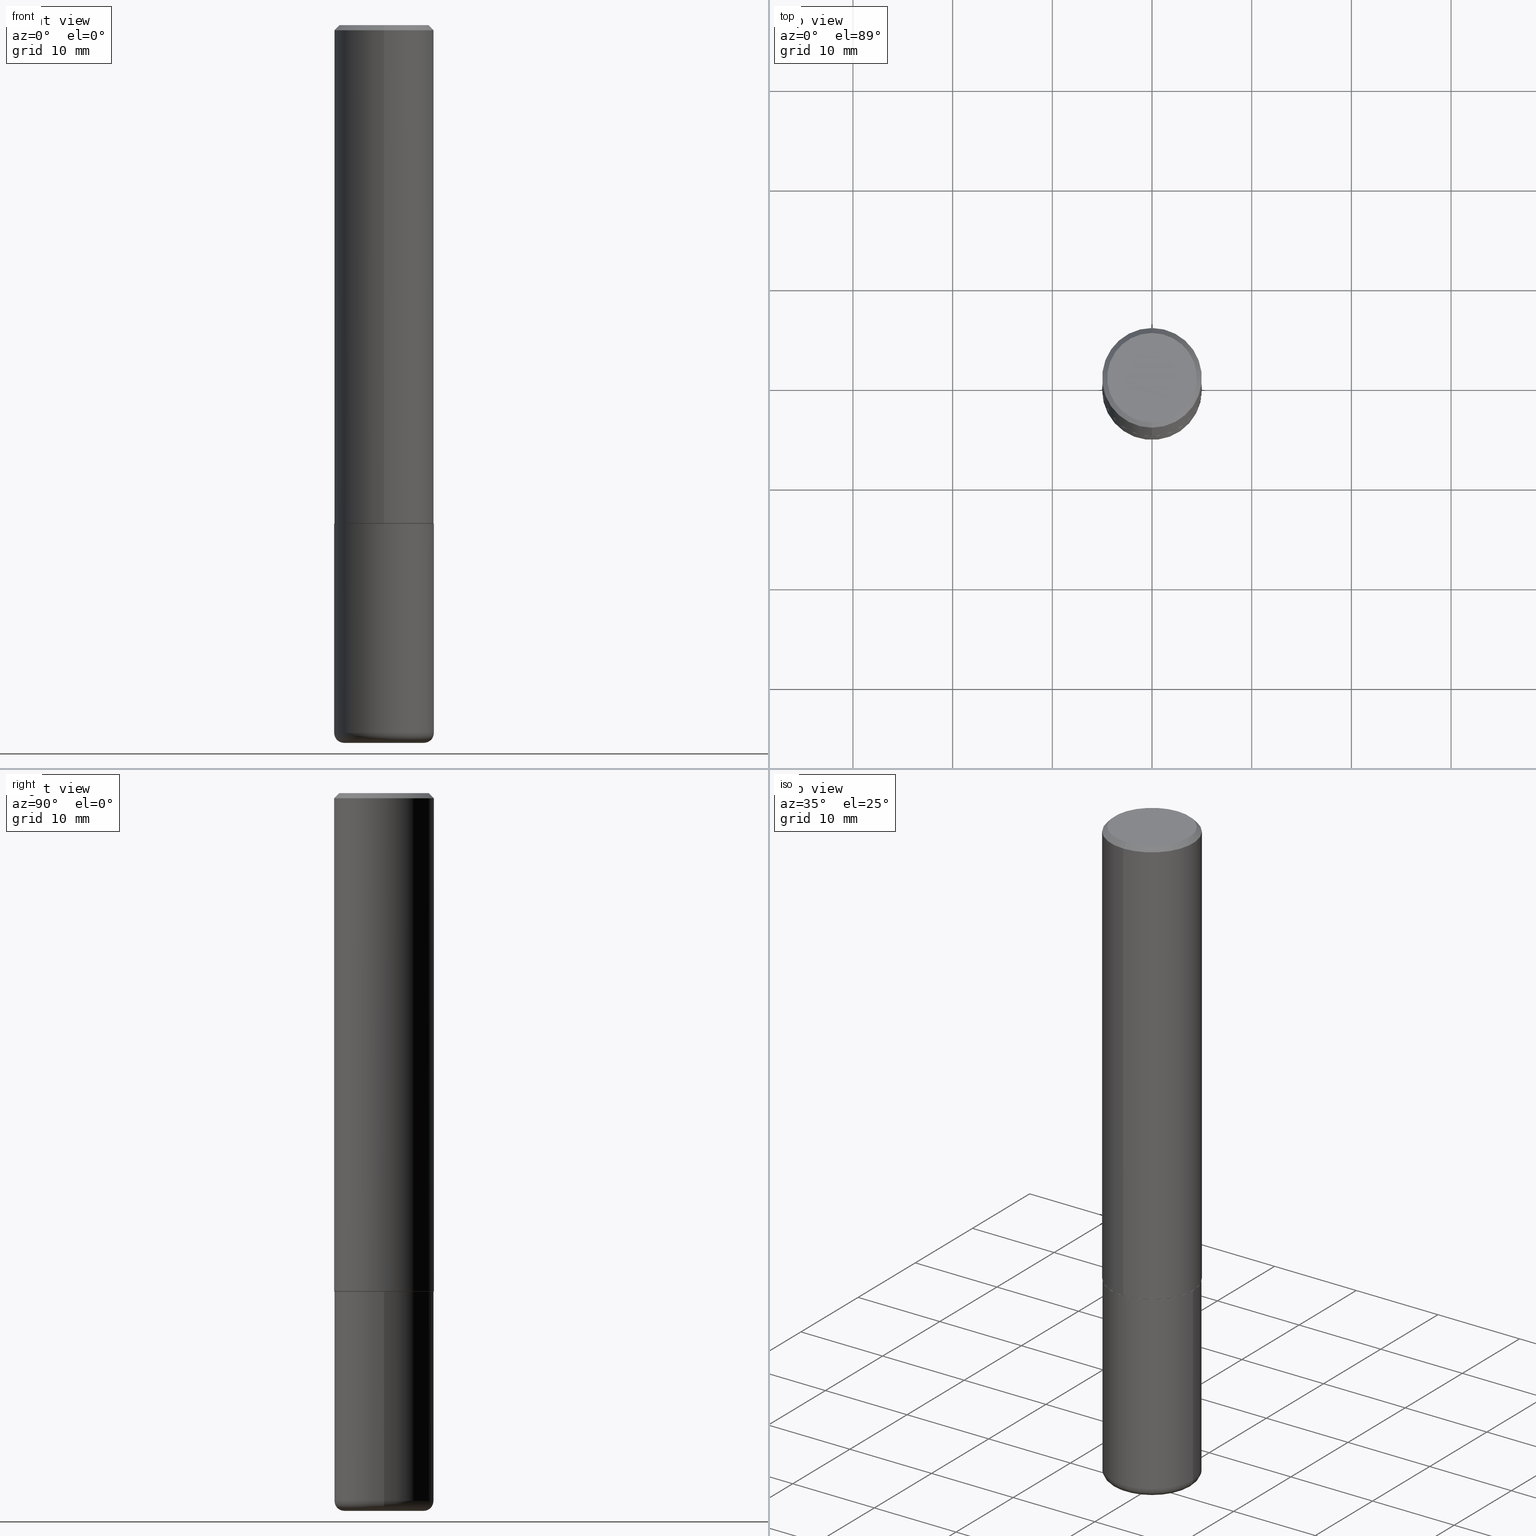
[diagram: canonical four-view strip — front | top / right | iso, engineering-drawing reading convention]
A machine part, canonical four-view strip (front | top / right | iso — engineering-drawing reading convention). The complete STEP part file that produces these views, byte-faithful:
ISO-10303-21;
HEADER;
FILE_DESCRIPTION (( 'STEP AP203' ),
    '1' );
FILE_NAME ('46457.STEP',
    '2024-03-04T21:27:07',
    ( '' ),
    ( '' ),
    'SwSTEP 2.0',
    'SolidWorks 2023',
    '' );
FILE_SCHEMA (( 'CONFIG_CONTROL_DESIGN' ));
ENDSEC;

DATA;
#1 = CIRCLE ( 'NONE', #143, 0.1968500000000000250 ) ;
#2 = CARTESIAN_POINT ( 'NONE',  ( -0.1968500000000000250, 1.398703375343757393E-15, -9.682923725166783677E-30 ) ) ;
#3 = CARTESIAN_POINT ( 'NONE',  ( 1.374596203102542003E-15, 0.1968499999999999417, -0.02000000000000072900 ) ) ;
#4 = ADVANCED_FACE ( 'NONE', ( #323 ), #302, .T. ) ;
#5 = CARTESIAN_POINT ( 'NONE',  ( 0.1574500000000000066, -1.099642047668648249E-14, -2.834600000000000009 ) ) ;
#6 = LINE ( 'NONE', #133, #128 ) ;
#7 = DIRECTION ( 'NONE',  ( -2.445468806185136597E-29, 3.491481338843145583E-15, 1.000000000000000000 ) ) ;
#8 = CONICAL_SURFACE ( 'NONE', #167, 0.1968500000000000250, 0.7853981633974469467 ) ;
#9 = FACE_OUTER_BOUND ( 'NONE', #73, .T. ) ;
#10 = EDGE_CURVE ( 'NONE', #413, #412, #360, .T. ) ;
#11 = DIRECTION ( 'NONE',  ( -2.445768211810956331E-29, 3.491052572945861944E-15, 1.000000000000000000 ) ) ;
#12 = CARTESIAN_POINT ( 'NONE',  ( 6.931925878012387517E-29, -9.896953003084780885E-15, -2.834600000000000009 ) ) ;
#13 = FACE_OUTER_BOUND ( 'NONE', #399, .T. ) ;
#14 = VERTEX_POINT ( 'NONE', #326 ) ;
#15 = EDGE_CURVE ( 'NONE', #412, #176, #71, .T. ) ;
#16 =( CONVERSION_BASED_UNIT ( 'INCH', #246 ) LENGTH_UNIT ( ) NAMED_UNIT ( #328 ) );
#17 = DIRECTION ( 'NONE',  ( -2.445768211810956331E-29, 3.491052572945861944E-15, 1.000000000000000000 ) ) ;
#18 = ORIENTED_EDGE ( 'NONE', *, *, #102, .F. ) ;
#19 = CC_DESIGN_PERSON_AND_ORGANIZATION_ASSIGNMENT ( #31, #29, ( #231 ) ) ;
#20 = EDGE_CURVE ( 'NONE', #252, #131, #198, .T. ) ;
#21 = DIRECTION ( 'NONE',  ( -4.851104656540957175E-15, -0.7071067811865490160, -0.7071067811865460184 ) ) ;
#22 = COORDINATED_UNIVERSAL_TIME_OFFSET ( 5, 0, .BEHIND. ) ;
#23 = ORIENTED_EDGE ( 'NONE', *, *, #336, .F. ) ;
#24 = CC_DESIGN_DATE_AND_TIME_ASSIGNMENT ( #150, #376, ( #408 ) ) ;
#25 = DIRECTION ( 'NONE',  ( 6.982962677686265133E-15, 1.000000000000000000, -3.491137977679279424E-15 ) ) ;
#26 = CALENDAR_DATE ( 2024, 4, 3 ) ;
#27 = CIRCLE ( 'NONE', #363, 0.1968500000000002470 ) ;
#28 = DIRECTION ( 'NONE',  ( -2.445768211810956331E-29, 3.491052572945861944E-15, 1.000000000000000000 ) ) ;
#29 = PERSON_AND_ORGANIZATION_ROLE ( 'classification_officer' ) ;
#30 = VERTEX_POINT ( 'NONE', #3 ) ;
#31 = PERSON_AND_ORGANIZATION ( #341, #384 ) ;
#32 = AXIS2_PLACEMENT_3D ( 'NONE', #108, #240, #75 ) ;
#33 = ADVANCED_FACE ( 'NONE', ( #130 ), #352, .F. ) ;
#34 = ORIENTED_EDGE ( 'NONE', *, *, #354, .F. ) ;
#35 = DIRECTION ( 'NONE',  ( 2.445768211810956331E-29, -3.491052572945861944E-15, -1.000000000000000000 ) ) ;
#36 = DIRECTION ( 'NONE',  ( -2.445468806185136877E-29, 3.491481338843145188E-15, 1.000000000000000000 ) ) ;
#37 = CARTESIAN_POINT ( 'NONE',  ( 6.835574407048694043E-29, -9.759388638334360093E-15, -2.795199999999999907 ) ) ;
#38 = CARTESIAN_POINT ( 'NONE',  ( 1.234936949548815998E-15, 0.1768499999999999794, -5.982222549444910867E-16 ) ) ;
#39 = APPROVAL_DATE_TIME ( #268, #89 ) ;
#40 = CARTESIAN_POINT ( 'NONE',  ( 0.1968500000000000527, -1.113398484143690170E-14, -2.795199999999999907 ) ) ;
#41 = AXIS2_PLACEMENT_3D ( 'NONE', #38, #267, #170 ) ;
#42 = VECTOR ( 'NONE', #21, 39.37007874015748143 ) ;
#43 = AXIS2_PLACEMENT_3D ( 'NONE', #207, #300, #203 ) ;
#44 = DIRECTION ( 'NONE',  ( 4.937700262164540942E-15, 0.7071067811865441310, -0.7071067811865509034 ) ) ;
#45 = EDGE_CURVE ( 'NONE', #113, #14, #6, .T. ) ;
#46 = PLANE ( 'NONE',  #211 ) ;
#47 = EDGE_LOOP ( 'NONE', ( #117, #290 ) ) ;
#48 = AXIS2_PLACEMENT_3D ( 'NONE', #258, #222, #285 ) ;
#49 = ORIENTED_EDGE ( 'NONE', *, *, #10, .F. ) ;
#50 = DIRECTION ( 'NONE',  ( -2.445768211810956331E-29, 3.491052572945861944E-15, 1.000000000000000000 ) ) ;
#51 = ADVANCED_BREP_SHAPE_REPRESENTATION ( '46457', ( #338, #70, #48 ), #174 ) ;
#52 = EDGE_CURVE ( 'NONE', #67, #98, #329, .T. ) ;
#53 = CARTESIAN_POINT ( 'NONE',  ( 0.000000000000000000, 0.000000000000000000, 0.000000000000000000 ) ) ;
#54 = CIRCLE ( 'NONE', #332, 0.1768499999999999794 ) ;
#55 =( NAMED_UNIT ( * ) PLANE_ANGLE_UNIT ( ) SI_UNIT ( $, .RADIAN. ) );
#56 = DIRECTION ( 'NONE',  ( -2.445468806185136597E-29, 3.491481338843145583E-15, 1.000000000000000000 ) ) ;
#57 = LINE ( 'NONE', #193, #389 ) ;
#58 = APPLICATION_PROTOCOL_DEFINITION ( 'international standard', 'config_control_design', 1994, #80 ) ;
#59 = EDGE_LOOP ( 'NONE', ( #149, #382, #180, #84 ) ) ;
#60 = ADVANCED_FACE ( 'NONE', ( #100 ), #228, .T. ) ;
#61 = ORIENTED_EDGE ( 'NONE', *, *, #265, .F. ) ;
#62 = CIRCLE ( 'NONE', #134, 0.1574500000000000066 ) ;
#63 = PERSON_AND_ORGANIZATION ( #341, #384 ) ;
#64 = CARTESIAN_POINT ( 'NONE',  ( 0.000000000000000000, 0.000000000000000000, 0.000000000000000000 ) ) ;
#65 = PERSON_AND_ORGANIZATION ( #341, #384 ) ;
#66 = EDGE_CURVE ( 'NONE', #14, #131, #27, .T. ) ;
#67 = VERTEX_POINT ( 'NONE', #184 ) ;
#68 = AXIS2_PLACEMENT_3D ( 'NONE', #238, #279, #247 ) ;
#69 = DIRECTION ( 'NONE',  ( -6.982962677686265922E-15, -1.000000000000000000, 3.491052572945862338E-15 ) ) ;
#70 = MANIFOLD_SOLID_BREP ( 'Body-Move/Copy2[2]', #78 ) ;
#71 = LINE ( 'NONE', #2, #390 ) ;
#72 = DIRECTION ( 'NONE',  ( -6.982962677686265922E-15, -1.000000000000000000, 4.163344669033670112E-15 ) ) ;
#73 = EDGE_LOOP ( 'NONE', ( #161, #312 ) ) ;
#74 = DIRECTION ( 'NONE',  ( 1.000000000000000000, -6.982962677686267499E-15, 0.000000000000000000 ) ) ;
#75 = DIRECTION ( 'NONE',  ( 1.000000000000000000, -6.982962677686267499E-15, 0.000000000000000000 ) ) ;
#76 = EDGE_CURVE ( 'NONE', #245, #412, #309, .T. ) ;
#77 = DIRECTION ( 'NONE',  ( -2.445768211810956331E-29, 3.491052572945861944E-15, 1.000000000000000000 ) ) ;
#78 = CLOSED_SHELL ( 'NONE', ( #153, #4, #274, #112, #122, #398, #83, #33 ) ) ;
#79 = CONICAL_SURFACE ( 'NONE', #157, 0.1968500000000000250, 0.7853981633974469467 ) ;
#80 = APPLICATION_CONTEXT ( 'configuration controlled 3d designs of mechanical parts and assemblies' ) ;
#81 = PRODUCT ( '46457', '46457', '', ( #378 ) ) ;
#82 = ORIENTED_EDGE ( 'NONE', *, *, #10, .T. ) ;
#83 = ADVANCED_FACE ( 'NONE', ( #9 ), #331, .F. ) ;
#84 = ORIENTED_EDGE ( 'NONE', *, *, #385, .F. ) ;
#85 = PRODUCT_DEFINITION_SHAPE ( 'NONE', 'NONE',  #408 ) ;
#86 = UNCERTAINTY_MEASURE_WITH_UNIT (LENGTH_MEASURE( 1.000000000000000082E-05 ), #16, 'distance_accuracy_value', 'NONE');
#87 = CIRCLE ( 'NONE', #339, 0.1968500000000000250 ) ;
#88 = ORIENTED_EDGE ( 'NONE', *, *, #76, .F. ) ;
#89 = APPROVAL ( #94, 'UNSPECIFIED' ) ;
#90 = DIRECTION ( 'NONE',  ( -2.445768211810956331E-29, 3.491052572945861944E-15, 1.000000000000000000 ) ) ;
#91 = ORIENTED_EDGE ( 'NONE', *, *, #192, .T. ) ;
#92 = ADVANCED_FACE ( 'NONE', ( #137 ), #46, .T. ) ;
#93 = CARTESIAN_POINT ( 'NONE',  ( 1.398703375343782834E-15, 0.1968499999999934191, -1.967500000000000471 ) ) ;
#94 = APPROVAL_STATUS ( 'not_yet_approved' ) ;
#95 = CARTESIAN_POINT ( 'NONE',  ( 4.814494724949867130E-29, -6.872136989843927252E-15, -1.968499999999999694 ) ) ;
#96 = AXIS2_PLACEMENT_3D ( 'NONE', #221, #56, #187 ) ;
#97 = EDGE_CURVE ( 'NONE', #284, #245, #126, .T. ) ;
#98 = VERTEX_POINT ( 'NONE', #357 ) ;
#99 = CARTESIAN_POINT ( 'NONE',  ( 4.814494724949867130E-29, -6.872136989843927252E-15, -1.968499999999999694 ) ) ;
#100 = FACE_OUTER_BOUND ( 'NONE', #387, .T. ) ;
#101 = AXIS2_PLACEMENT_3D ( 'NONE', #234, #356, #74 ) ;
#102 = EDGE_CURVE ( 'NONE', #245, #224, #361, .T. ) ;
#103 = DIRECTION ( 'NONE',  ( 5.024295867788490741E-15, 0.7071067811866103003, 0.7071067811864847341 ) ) ;
#104 = DIRECTION ( 'NONE',  ( 1.000000000000000000, -6.982962677686267499E-15, 0.000000000000000000 ) ) ;
#105 = ORIENTED_EDGE ( 'NONE', *, *, #206, .F. ) ;
#106 = LINE ( 'NONE', #205, #351 ) ;
#107 = ADVANCED_FACE ( 'NONE', ( #13 ), #220, .T. ) ;
#108 = CARTESIAN_POINT ( 'NONE',  ( 0.1574500000000000066, -1.085885611193606169E-14, -2.795199999999999907 ) ) ;
#109 = DIRECTION ( 'NONE',  ( 1.000000000000000000, -6.982962677686267499E-15, 0.000000000000000000 ) ) ;
#110 = AXIS2_PLACEMENT_3D ( 'NONE', #306, #28, #260 ) ;
#111 = ORIENTED_EDGE ( 'NONE', *, *, #20, .F. ) ;
#112 = ADVANCED_FACE ( 'NONE', ( #276 ), #79, .T. ) ;
#113 = VERTEX_POINT ( 'NONE', #379 ) ;
#114 = ORIENTED_EDGE ( 'NONE', *, *, #102, .T. ) ;
#115 = CIRCLE ( 'NONE', #101, 0.1968500000000000250 ) ;
#116 = DIRECTION ( 'NONE',  ( -6.982962677686265922E-15, -1.000000000000000000, 3.491052572945862338E-15 ) ) ;
#117 = ORIENTED_EDGE ( 'NONE', *, *, #52, .T. ) ;
#118 = EDGE_CURVE ( 'NONE', #14, #154, #57, .T. ) ;
#119 = CC_DESIGN_PERSON_AND_ORGANIZATION_ASSIGNMENT ( #415, #288, ( #81 ) ) ;
#120 = EDGE_LOOP ( 'NONE', ( #266, #209 ) ) ;
#121 = AXIS2_PLACEMENT_3D ( 'NONE', #400, #90, #219 ) ;
#122 = ADVANCED_FACE ( 'NONE', ( #370 ), #147, .T. ) ;
#123 = DIRECTION ( 'NONE',  ( -2.445468806185136597E-29, 3.491481338843145583E-15, 1.000000000000000000 ) ) ;
#124 = EDGE_LOOP ( 'NONE', ( #343, #287, #409, #18 ) ) ;
#125 = PERSON_AND_ORGANIZATION ( #341, #384 ) ;
#126 = CIRCLE ( 'NONE', #32, 0.03940000000000005997 ) ;
#127 = PERSON_AND_ORGANIZATION ( #341, #384 ) ;
#128 = VECTOR ( 'NONE', #173, 39.37007874015748143 ) ;
#129 = ORIENTED_EDGE ( 'NONE', *, *, #354, .T. ) ;
#130 = FACE_OUTER_BOUND ( 'NONE', #47, .T. ) ;
#131 = VERTEX_POINT ( 'NONE', #93 ) ;
#132 = DIRECTION ( 'NONE',  ( -2.445768211810956331E-29, 3.491052572945861944E-15, 1.000000000000000000 ) ) ;
#133 = CARTESIAN_POINT ( 'NONE',  ( -1.367613240424807079E-15, -0.1958500000000068797, -1.968499999999999028 ) ) ;
#134 = AXIS2_PLACEMENT_3D ( 'NONE', #12, #391, #141 ) ;
#135 = DIRECTION ( 'NONE',  ( -6.982962677686265922E-15, -1.000000000000000000, 4.184602492209747448E-15 ) ) ;
#136 = EDGE_CURVE ( 'NONE', #98, #154, #251, .T. ) ;
#137 = FACE_OUTER_BOUND ( 'NONE', #120, .T. ) ;
#138 = DIRECTION ( 'NONE',  ( 1.000000000000000000, -6.982962677686265922E-15, 4.883557194083112340E-29 ) ) ;
#139 = PRODUCT_DEFINITION_FORMATION_WITH_SPECIFIED_SOURCE ( 'ANY', '', #81, .NOT_KNOWN. ) ;
#140 = CARTESIAN_POINT ( 'NONE',  ( 4.814494724949867690E-29, -6.872136989843929619E-15, -1.968500000000000139 ) ) ;
#141 = DIRECTION ( 'NONE',  ( 1.000000000000000000, -6.982962677686265922E-15, 0.000000000000000000 ) ) ;
#142 = EDGE_CURVE ( 'NONE', #113, #252, #204, .T. ) ;
#143 = AXIS2_PLACEMENT_3D ( 'NONE', #178, #77, #172 ) ;
#144 = EDGE_LOOP ( 'NONE', ( #168, #396, #232, #374 ) ) ;
#145 = ORIENTED_EDGE ( 'NONE', *, *, #45, .F. ) ;
#146 = EDGE_LOOP ( 'NONE', ( #181, #364, #215, #145 ) ) ;
#147 = CYLINDRICAL_SURFACE ( 'NONE', #216, 0.1968500000000001082 ) ;
#148 = ORIENTED_EDGE ( 'NONE', *, *, #280, .F. ) ;
#149 = ORIENTED_EDGE ( 'NONE', *, *, #369, .F. ) ;
#150 = DATE_AND_TIME ( #255, #401 ) ;
#151 = APPROVAL_PERSON_ORGANIZATION ( #65, #365, #344 ) ;
#152 = PLANE ( 'NONE',  #294 ) ;
#153 = ADVANCED_FACE ( 'NONE', ( #218 ), #278, .T. ) ;
#154 = VERTEX_POINT ( 'NONE', #190 ) ;
#155 = DIRECTION ( 'NONE',  ( 1.000000000000000000, -6.982962677686265922E-15, 4.883557194083112340E-29 ) ) ;
#156 = ORIENTED_EDGE ( 'NONE', *, *, #192, .F. ) ;
#157 = AXIS2_PLACEMENT_3D ( 'NONE', #372, #253, #25 ) ;
#158 = AXIS2_PLACEMENT_3D ( 'NONE', #64, #163, #292 ) ;
#159 = APPROVAL_DATE_TIME ( #348, #345 ) ;
#160 = CARTESIAN_POINT ( 'NONE',  ( 4.813905344975441835E-29, -6.872981015512731707E-15, -1.968500000000000139 ) ) ;
#161 = ORIENTED_EDGE ( 'NONE', *, *, #142, .F. ) ;
#162 = CALENDAR_DATE ( 2024, 4, 3 ) ;
#163 = DIRECTION ( 'NONE',  ( -2.445468806185136597E-29, 3.491481338843145583E-15, 1.000000000000000000 ) ) ;
#164 = LOCAL_TIME ( 16, 27, 7.000000000000000000, #165 ) ;
#165 = COORDINATED_UNIVERSAL_TIME_OFFSET ( 5, 0, .BEHIND. ) ;
#166 = DIRECTION ( 'NONE',  ( -2.445768211810956331E-29, 3.491052572945861944E-15, 1.000000000000000000 ) ) ;
#167 = AXIS2_PLACEMENT_3D ( 'NONE', #381, #35, #304 ) ;
#168 = ORIENTED_EDGE ( 'NONE', *, *, #136, .F. ) ;
#169 = DIRECTION ( 'NONE',  ( -2.445768211810956331E-29, 3.491052572945861944E-15, 1.000000000000000000 ) ) ;
#170 = DIRECTION ( 'NONE',  ( 6.982962677686265922E-15, 1.000000000000000000, -3.491052572945861549E-15 ) ) ;
#171 = EDGE_CURVE ( 'NONE', #284, #413, #233, .T. ) ;
#172 = DIRECTION ( 'NONE',  ( -6.982962677686265133E-15, -1.000000000000000000, 3.491137977679279424E-15 ) ) ;
#173 = DIRECTION ( 'NONE',  ( -4.937700262164969294E-15, -0.7071067811866054154, 0.7071067811864896191 ) ) ;
#174 =( GEOMETRIC_REPRESENTATION_CONTEXT ( 3 ) GLOBAL_UNCERTAINTY_ASSIGNED_CONTEXT ( ( #86 ) ) GLOBAL_UNIT_ASSIGNED_CONTEXT ( ( #16, #55, #342 ) ) REPRESENTATION_CONTEXT ( 'NONE', 'WORKASPACE' ) );
#175 = DIRECTION ( 'NONE',  ( -2.445768211810956331E-29, 3.491052572945861549E-15, 1.000000000000000000 ) ) ;
#176 = VERTEX_POINT ( 'NONE', #315 ) ;
#177 = CLOSED_SHELL ( 'NONE', ( #317, #200, #186, #60, #107, #92 ) ) ;
#178 = CARTESIAN_POINT ( 'NONE',  ( 4.891536423621923102E-31, -6.982105145891738778E-17, -0.02000000000000004205 ) ) ;
#179 = CARTESIAN_POINT ( 'NONE',  ( 0.1968500000000000250, -1.374596203102541608E-15, 9.598753983154300858E-30 ) ) ;
#180 = ORIENTED_EDGE ( 'NONE', *, *, #206, .T. ) ;
#181 = ORIENTED_EDGE ( 'NONE', *, *, #142, .T. ) ;
#182 = CONICAL_SURFACE ( 'NONE', #405, 0.1958499999999999963, 0.7853981633975336552 ) ;
#183 = ORIENTED_EDGE ( 'NONE', *, *, #97, .F. ) ;
#184 = CARTESIAN_POINT ( 'NONE',  ( 1.304766576325679099E-15, 0.1768499999999999794, -5.790518623635066240E-16 ) ) ;
#185 = EDGE_LOOP ( 'NONE', ( #111, #366, #201, #148 ) ) ;
#186 = ADVANCED_FACE ( 'NONE', ( #340 ), #152, .F. ) ;
#187 = DIRECTION ( 'NONE',  ( 1.000000000000000000, -6.982962677686265922E-15, 0.000000000000000000 ) ) ;
#188 = ORIENTED_EDGE ( 'NONE', *, *, #118, .F. ) ;
#189 = AXIS2_PLACEMENT_3D ( 'NONE', #320, #353, #72 ) ;
#190 = CARTESIAN_POINT ( 'NONE',  ( -1.350489030861325429E-15, -0.1968500000000000805, -0.01999999999999935510 ) ) ;
#191 = PERSON_AND_ORGANIZATION_ROLE ( 'design_supplier' ) ;
#192 = EDGE_CURVE ( 'NONE', #176, #224, #87, .T. ) ;
#193 = CARTESIAN_POINT ( 'NONE',  ( -1.374596203102542200E-15, -0.1968500000000001082, 6.872136989843933563E-16 ) ) ;
#194 = PERSON_AND_ORGANIZATION ( #341, #384 ) ;
#195 = CARTESIAN_POINT ( 'NONE',  ( 4.813905344975441835E-29, -6.872981015512731707E-15, -1.968500000000000139 ) ) ;
#196 = AXIS2_PLACEMENT_3D ( 'NONE', #349, #166, #295 ) ;
#197 = PERSON_AND_ORGANIZATION ( #341, #384 ) ;
#198 = LINE ( 'NONE', #297, #229 ) ;
#199 = COORDINATED_UNIVERSAL_TIME_OFFSET ( 5, 0, .BEHIND. ) ;
#200 = ADVANCED_FACE ( 'NONE', ( #301 ), #314, .T. ) ;
#201 = ORIENTED_EDGE ( 'NONE', *, *, #45, .T. ) ;
#202 = CALENDAR_DATE ( 2024, 4, 3 ) ;
#203 = DIRECTION ( 'NONE',  ( -1.000000000000000000, 7.105427357601014480E-15, 0.000000000000000000 ) ) ;
#204 = CIRCLE ( 'NONE', #121, 0.1958499999999999963 ) ;
#205 = CARTESIAN_POINT ( 'NONE',  ( 1.374596203102542003E-15, 0.1968499999999999417, -0.02000000000000072900 ) ) ;
#206 = EDGE_CURVE ( 'NONE', #154, #30, #256, .T. ) ;
#207 = CARTESIAN_POINT ( 'NONE',  ( -0.1574500000000000066, -8.640639100880081711E-15, -2.795199999999999907 ) ) ;
#208 = CARTESIAN_POINT ( 'NONE',  ( -9.377267356501713356E-46, 1.338496966884566499E-31, 3.834078516196907338E-17 ) ) ;
#209 = ORIENTED_EDGE ( 'NONE', *, *, #402, .F. ) ;
#210 = CARTESIAN_POINT ( 'NONE',  ( 4.814494724949867130E-29, -6.872136989843927252E-15, -1.968499999999999694 ) ) ;
#211 = AXIS2_PLACEMENT_3D ( 'NONE', #273, #392, #214 ) ;
#212 = DIRECTION ( 'NONE',  ( 1.000000000000000000, -6.982962677686265922E-15, 4.876176775795935793E-29 ) ) ;
#213 = DIRECTION ( 'NONE',  ( -2.445768211810956051E-29, 3.491052572945861549E-15, 1.000000000000000000 ) ) ;
#214 = DIRECTION ( 'NONE',  ( -1.000000000000000000, 6.982962677686265922E-15, -4.876176775795935793E-29 ) ) ;
#215 = ORIENTED_EDGE ( 'NONE', *, *, #66, .F. ) ;
#216 = AXIS2_PLACEMENT_3D ( 'NONE', #53, #17, #116 ) ;
#217 = DIRECTION ( 'NONE',  ( -6.982962677686265922E-15, -1.000000000000000000, 4.163344669033670112E-15 ) ) ;
#218 = FACE_OUTER_BOUND ( 'NONE', #146, .T. ) ;
#219 = DIRECTION ( 'NONE',  ( -6.982962677686265922E-15, -1.000000000000000000, 4.184602492209747448E-15 ) ) ;
#220 = TOROIDAL_SURFACE ( 'NONE', #286, 0.1574500000000000066, 0.03940000000000005997 ) ;
#221 = CARTESIAN_POINT ( 'NONE',  ( 6.931925878012387517E-29, -9.896953003084780885E-15, -2.834600000000000009 ) ) ;
#222 = DIRECTION ( 'NONE',  ( 0.000000000000000000, 0.000000000000000000, 1.000000000000000000 ) ) ;
#223 = DIRECTION ( 'NONE',  ( -2.445768211810956331E-29, 3.491052572945861549E-15, 1.000000000000000000 ) ) ;
#224 = VERTEX_POINT ( 'NONE', #299 ) ;
#225 = PERSON_AND_ORGANIZATION_ROLE ( 'creator' ) ;
#226 = LINE ( 'NONE', #330, #367 ) ;
#227 = AXIS2_PLACEMENT_3D ( 'NONE', #140, #213, #311 ) ;
#228 = CYLINDRICAL_SURFACE ( 'NONE', #158, 0.1968500000000000250 ) ;
#229 = VECTOR ( 'NONE', #103, 39.37007874015748143 ) ;
#230 = APPLICATION_PROTOCOL_DEFINITION ( 'international standard', 'config_control_design', 1994, #298 ) ;
#231 = SECURITY_CLASSIFICATION ( '', '', #321 ) ;
#232 = ORIENTED_EDGE ( 'NONE', *, *, #385, .T. ) ;
#233 = CIRCLE ( 'NONE', #96, 0.1574500000000000066 ) ;
#234 = CARTESIAN_POINT ( 'NONE',  ( 4.813905344975441835E-29, -6.872981015512731707E-15, -1.968500000000000139 ) ) ;
#235 = ORIENTED_EDGE ( 'NONE', *, *, #118, .T. ) ;
#236 = CC_DESIGN_DATE_AND_TIME_ASSIGNMENT ( #371, #418, ( #231 ) ) ;
#237 = DIRECTION ( 'NONE',  ( -1.000000000000000000, 6.982962677686265922E-15, -4.876176775795935793E-29 ) ) ;
#238 = CARTESIAN_POINT ( 'NONE',  ( 6.835574407048694043E-29, -9.759388638334360093E-15, -2.795199999999999907 ) ) ;
#239 = CARTESIAN_POINT ( 'NONE',  ( 1.395150661665005404E-15, 0.1958499999999931407, -1.968500000000000583 ) ) ;
#240 = DIRECTION ( 'NONE',  ( -6.982962677686266711E-15, -1.000000000000000000, 3.491481338843145583E-15 ) ) ;
#241 = ORIENTED_EDGE ( 'NONE', *, *, #66, .T. ) ;
#242 = AXIS2_PLACEMENT_3D ( 'NONE', #417, #346, #261 ) ;
#243 = CIRCLE ( 'NONE', #250, 0.1958499999999999963 ) ;
#244 = FACE_OUTER_BOUND ( 'NONE', #59, .T. ) ;
#245 = VERTEX_POINT ( 'NONE', #40 ) ;
#246 = LENGTH_MEASURE_WITH_UNIT ( LENGTH_MEASURE( 0.02539999999999999897 ), #310 );
#247 = DIRECTION ( 'NONE',  ( 1.000000000000000000, -6.982962677686267499E-15, 0.000000000000000000 ) ) ;
#248 = ORIENTED_EDGE ( 'NONE', *, *, #402, .T. ) ;
#249 = ORIENTED_EDGE ( 'NONE', *, *, #15, .F. ) ;
#250 = AXIS2_PLACEMENT_3D ( 'NONE', #99, #132, #135 ) ;
#251 = LINE ( 'NONE', #368, #42 ) ;
#252 = VERTEX_POINT ( 'NONE', #239 ) ;
#253 = DIRECTION ( 'NONE',  ( 2.445768211810956331E-29, -3.491052572945861944E-15, -1.000000000000000000 ) ) ;
#254 = EDGE_LOOP ( 'NONE', ( #308, #82, #88, #183 ) ) ;
#255 = CALENDAR_DATE ( 2024, 4, 3 ) ;
#256 = CIRCLE ( 'NONE', #110, 0.1968500000000000250 ) ;
#257 = CC_DESIGN_PERSON_AND_ORGANIZATION_ASSIGNMENT ( #125, #410, ( #408 ) ) ;
#258 = CARTESIAN_POINT ( 'NONE',  ( 0.000000000000000000, 0.000000000000000000, 0.000000000000000000 ) ) ;
#259 = CALENDAR_DATE ( 2024, 4, 3 ) ;
#260 = DIRECTION ( 'NONE',  ( -6.982962677686265133E-15, -1.000000000000000000, 3.491137977679279424E-15 ) ) ;
#261 = DIRECTION ( 'NONE',  ( -6.982962677686265922E-15, -1.000000000000000000, 3.491052572945862338E-15 ) ) ;
#262 = APPROVAL_STATUS ( 'not_yet_approved' ) ;
#263 = CIRCLE ( 'NONE', #189, 0.1968500000000002470 ) ;
#264 = CARTESIAN_POINT ( 'NONE',  ( 4.812048956738055591E-29, -6.868645937270982279E-15, -1.967499999999999805 ) ) ;
#265 = EDGE_CURVE ( 'NONE', #412, #245, #362, .T. ) ;
#266 = ORIENTED_EDGE ( 'NONE', *, *, #171, .F. ) ;
#267 = DIRECTION ( 'NONE',  ( 2.445768211810956051E-29, -3.491052572945861549E-15, -1.000000000000000000 ) ) ;
#268 = DATE_AND_TIME ( #202, #293 ) ;
#269 = DIRECTION ( 'NONE',  ( -2.445768211810956331E-29, 3.491052572945861944E-15, 1.000000000000000000 ) ) ;
#270 = CC_DESIGN_PERSON_AND_ORGANIZATION_ASSIGNMENT ( #63, #191, ( #139 ) ) ;
#271 = AXIS2_PLACEMENT_3D ( 'NONE', #95, #50, #337 ) ;
#272 = CARTESIAN_POINT ( 'NONE',  ( 0.000000000000000000, 0.000000000000000000, 0.000000000000000000 ) ) ;
#273 = CARTESIAN_POINT ( 'NONE',  ( 6.931925878012387517E-29, -9.896953003084780885E-15, -2.834600000000000009 ) ) ;
#274 = ADVANCED_FACE ( 'NONE', ( #244 ), #8, .T. ) ;
#275 = CARTESIAN_POINT ( 'NONE',  ( -0.1968500000000000527, -8.360685262990601516E-15, -2.795199999999999907 ) ) ;
#276 = FACE_OUTER_BOUND ( 'NONE', #144, .T. ) ;
#277 = EDGE_LOOP ( 'NONE', ( #355, #91 ) ) ;
#278 = CONICAL_SURFACE ( 'NONE', #271, 0.1958499999999999963, 0.7853981633975336552 ) ;
#279 = DIRECTION ( 'NONE',  ( -2.445468806185136597E-29, 3.491481338843145583E-15, 1.000000000000000000 ) ) ;
#280 = EDGE_CURVE ( 'NONE', #131, #14, #263, .T. ) ;
#281 = EDGE_LOOP ( 'NONE', ( #34, #407, #235, #23 ) ) ;
#282 = AXIS2_PLACEMENT_3D ( 'NONE', #37, #393, #104 ) ;
#283 = APPROVAL_ROLE ( '' ) ;
#284 = VERTEX_POINT ( 'NONE', #5 ) ;
#285 = DIRECTION ( 'NONE',  ( 1.000000000000000000, 0.000000000000000000, 0.000000000000000000 ) ) ;
#286 = AXIS2_PLACEMENT_3D ( 'NONE', #395, #406, #155 ) ;
#287 = ORIENTED_EDGE ( 'NONE', *, *, #15, .T. ) ;
#288 = PERSON_AND_ORGANIZATION_ROLE ( 'design_owner' ) ;
#289 = DIRECTION ( 'NONE',  ( 2.438088387897960049E-29, -3.491481338843145188E-15, -1.000000000000000000 ) ) ;
#290 = ORIENTED_EDGE ( 'NONE', *, *, #369, .T. ) ;
#291 = PRODUCT_RELATED_PRODUCT_CATEGORY ( 'detail', '', ( #81 ) ) ;
#292 = DIRECTION ( 'NONE',  ( 1.000000000000000000, -6.982962677686265922E-15, 4.876176775795935793E-29 ) ) ;
#293 = LOCAL_TIME ( 16, 27, 7.000000000000000000, #404 ) ;
#294 = AXIS2_PLACEMENT_3D ( 'NONE', #160, #289, #237 ) ;
#295 = DIRECTION ( 'NONE',  ( -6.982962677686265922E-15, -1.000000000000000000, 3.491052572945862338E-15 ) ) ;
#296 = CC_DESIGN_APPROVAL ( #345, ( #408 ) ) ;
#297 = CARTESIAN_POINT ( 'NONE',  ( 1.391597947986204111E-15, 0.1958499999999931407, -1.968500000000000583 ) ) ;
#298 = APPLICATION_CONTEXT ( 'configuration controlled 3d designs of mechanical parts and assemblies' ) ;
#299 = CARTESIAN_POINT ( 'NONE',  ( 0.1968500000000000250, -8.247577218615273316E-15, -1.968500000000000139 ) ) ;
#300 = DIRECTION ( 'NONE',  ( 7.105427357601001859E-15, 1.000000000000000000, -3.491481338843145583E-15 ) ) ;
#301 = FACE_OUTER_BOUND ( 'NONE', #254, .T. ) ;
#302 = CYLINDRICAL_SURFACE ( 'NONE', #196, 0.1968500000000001082 ) ;
#303 = AXIS2_PLACEMENT_3D ( 'NONE', #325, #123, #138 ) ;
#304 = DIRECTION ( 'NONE',  ( 6.982962677686265133E-15, 1.000000000000000000, -3.491137977679279424E-15 ) ) ;
#305 = LOCAL_TIME ( 16, 27, 7.000000000000000000, #22 ) ;
#306 = CARTESIAN_POINT ( 'NONE',  ( 4.891536423621923102E-31, -6.982105145891738778E-17, -0.02000000000000004205 ) ) ;
#307 = DIRECTION ( 'NONE',  ( -2.445468806185136877E-29, 3.491481338843145188E-15, 1.000000000000000000 ) ) ;
#308 = ORIENTED_EDGE ( 'NONE', *, *, #171, .T. ) ;
#309 = CIRCLE ( 'NONE', #68, 0.1968500000000000250 ) ;
#310 =( LENGTH_UNIT ( ) NAMED_UNIT ( * ) SI_UNIT ( $, .METRE. ) );
#311 = DIRECTION ( 'NONE',  ( -6.982962677686265922E-15, -1.000000000000000000, 3.491052572945861549E-15 ) ) ;
#312 = ORIENTED_EDGE ( 'NONE', *, *, #347, .F. ) ;
#313 = ORIENTED_EDGE ( 'NONE', *, *, #97, .T. ) ;
#314 = TOROIDAL_SURFACE ( 'NONE', #303, 0.1574500000000000066, 0.03940000000000005997 ) ;
#315 = CARTESIAN_POINT ( 'NONE',  ( -0.1968500000000000250, -6.917481451579789690E-15, -1.968500000000000139 ) ) ;
#316 = APPROVAL_ROLE ( '' ) ;
#317 = ADVANCED_FACE ( 'NONE', ( #411 ), #359, .T. ) ;
#318 = APPROVAL_STATUS ( 'not_yet_approved' ) ;
#319 = AXIS2_PLACEMENT_3D ( 'NONE', #272, #7, #212 ) ;
#320 = CARTESIAN_POINT ( 'NONE',  ( 4.812048956738055591E-29, -6.868645937270982279E-15, -1.967499999999999805 ) ) ;
#321 = SECURITY_CLASSIFICATION_LEVEL ( 'unclassified' ) ;
#322 = DATE_AND_TIME ( #259, #414 ) ;
#323 = FACE_OUTER_BOUND ( 'NONE', #335, .T. ) ;
#324 = FACE_OUTER_BOUND ( 'NONE', #185, .T. ) ;
#325 = CARTESIAN_POINT ( 'NONE',  ( 6.835574407048694043E-29, -9.759388638334360093E-15, -2.795199999999999907 ) ) ;
#326 = CARTESIAN_POINT ( 'NONE',  ( -1.374596203102495065E-15, -0.1968500000000071026, -1.967499999999998916 ) ) ;
#327 = DIRECTION ( 'NONE',  ( -2.445468806185136597E-29, 3.491481338843145583E-15, 1.000000000000000000 ) ) ;
#328 = DIMENSIONAL_EXPONENTS ( 1.000000000000000000, 0.000000000000000000, 0.000000000000000000, 0.000000000000000000, 0.000000000000000000, 0.000000000000000000, 0.000000000000000000 ) ;
#329 = CIRCLE ( 'NONE', #242, 0.1768499999999999794 ) ;
#330 = CARTESIAN_POINT ( 'NONE',  ( 1.398703375343757788E-15, 0.1968500000000001082, -6.872136989843933563E-16 ) ) ;
#331 = PLANE ( 'NONE',  #227 ) ;
#332 = AXIS2_PLACEMENT_3D ( 'NONE', #208, #269, #69 ) ;
#333 = CC_DESIGN_PERSON_AND_ORGANIZATION_ASSIGNMENT ( #197, #225, ( #139 ) ) ;
#334 = DESIGN_CONTEXT ( 'detailed design', #80, 'design' ) ;
#335 = EDGE_LOOP ( 'NONE', ( #241, #129, #105, #188 ) ) ;
#336 = EDGE_CURVE ( 'NONE', #30, #154, #1, .T. ) ;
#337 = DIRECTION ( 'NONE',  ( -6.982962677686265922E-15, -1.000000000000000000, 4.184602492209747448E-15 ) ) ;
#338 = MANIFOLD_SOLID_BREP ( 'Body-Move/Copy2[1]', #177 ) ;
#339 = AXIS2_PLACEMENT_3D ( 'NONE', #195, #327, #109 ) ;
#340 = FACE_OUTER_BOUND ( 'NONE', #277, .T. ) ;
#341 = PERSON ( 'UNSPECIFIED', 'UNSPECIFIED', 'UNSPECIFIED', ('UNSPECIFIED'), ('UNSPECIFIED'), ('UNSPECIFIED') ) ;
#342 =( NAMED_UNIT ( * ) SI_UNIT ( $, .STERADIAN. ) SOLID_ANGLE_UNIT ( ) );
#343 = ORIENTED_EDGE ( 'NONE', *, *, #76, .T. ) ;
#344 = APPROVAL_ROLE ( '' ) ;
#345 = APPROVAL ( #318, 'UNSPECIFIED' ) ;
#346 = DIRECTION ( 'NONE',  ( -2.445768211810956331E-29, 3.491052572945861944E-15, 1.000000000000000000 ) ) ;
#347 = EDGE_CURVE ( 'NONE', #252, #113, #243, .T. ) ;
#348 = DATE_AND_TIME ( #26, #305 ) ;
#349 = CARTESIAN_POINT ( 'NONE',  ( 0.000000000000000000, 0.000000000000000000, 0.000000000000000000 ) ) ;
#350 = CC_DESIGN_SECURITY_CLASSIFICATION ( #231, ( #139 ) ) ;
#351 = VECTOR ( 'NONE', #44, 39.37007874015748143 ) ;
#352 = PLANE ( 'NONE',  #41 ) ;
#353 = DIRECTION ( 'NONE',  ( -2.445768211810956331E-29, 3.491052572945861944E-15, 1.000000000000000000 ) ) ;
#354 = EDGE_CURVE ( 'NONE', #131, #30, #226, .T. ) ;
#355 = ORIENTED_EDGE ( 'NONE', *, *, #416, .T. ) ;
#356 = DIRECTION ( 'NONE',  ( -2.445468806185136597E-29, 3.491481338843145583E-15, 1.000000000000000000 ) ) ;
#357 = CARTESIAN_POINT ( 'NONE',  ( -1.281884050883610492E-15, -0.1768499999999999794, 6.557334326874447708E-16 ) ) ;
#358 = APPROVAL_PERSON_ORGANIZATION ( #127, #89, #283 ) ;
#359 = CYLINDRICAL_SURFACE ( 'NONE', #319, 0.1968500000000000250 ) ;
#360 = CIRCLE ( 'NONE', #43, 0.03940000000000005997 ) ;
#361 = LINE ( 'NONE', #179, #375 ) ;
#362 = CIRCLE ( 'NONE', #282, 0.1968500000000000250 ) ;
#363 = AXIS2_PLACEMENT_3D ( 'NONE', #264, #11, #217 ) ;
#364 = ORIENTED_EDGE ( 'NONE', *, *, #20, .T. ) ;
#365 = APPROVAL ( #262, 'UNSPECIFIED' ) ;
#366 = ORIENTED_EDGE ( 'NONE', *, *, #347, .T. ) ;
#367 = VECTOR ( 'NONE', #175, 39.37007874015748143 ) ;
#368 = CARTESIAN_POINT ( 'NONE',  ( -1.350489030861325429E-15, -0.1968500000000000805, -0.01999999999999935510 ) ) ;
#369 = EDGE_CURVE ( 'NONE', #98, #67, #54, .T. ) ;
#370 = FACE_OUTER_BOUND ( 'NONE', #281, .T. ) ;
#371 = DATE_AND_TIME ( #162, #164 ) ;
#372 = CARTESIAN_POINT ( 'NONE',  ( 4.891536423621923102E-31, -6.982105145891738778E-17, -0.02000000000000004205 ) ) ;
#373 = CC_DESIGN_APPROVAL ( #89, ( #231 ) ) ;
#374 = ORIENTED_EDGE ( 'NONE', *, *, #336, .T. ) ;
#375 = VECTOR ( 'NONE', #307, 39.37007874015748143 ) ;
#376 = DATE_TIME_ROLE ( 'creation_date' ) ;
#377 = APPROVAL_PERSON_ORGANIZATION ( #194, #345, #316 ) ;
#378 = MECHANICAL_CONTEXT ( 'NONE', #298, 'mechanical' ) ;
#379 = CARTESIAN_POINT ( 'NONE',  ( -1.367613240424807079E-15, -0.1958500000000068797, -1.968499999999999028 ) ) ;
#380 = APPROVAL_DATE_TIME ( #322, #365 ) ;
#381 = CARTESIAN_POINT ( 'NONE',  ( 4.891536423621923102E-31, -6.982105145891738778E-17, -0.02000000000000004205 ) ) ;
#382 = ORIENTED_EDGE ( 'NONE', *, *, #136, .T. ) ;
#383 = COORDINATED_UNIVERSAL_TIME_OFFSET ( 5, 0, .BEHIND. ) ;
#384 = ORGANIZATION ( 'UNSPECIFIED', 'UNSPECIFIED', '' ) ;
#385 = EDGE_CURVE ( 'NONE', #67, #30, #106, .T. ) ;
#386 = ORIENTED_EDGE ( 'NONE', *, *, #265, .T. ) ;
#387 = EDGE_LOOP ( 'NONE', ( #249, #386, #114, #156 ) ) ;
#388 = DIRECTION ( 'NONE',  ( -6.982962677686265922E-15, -1.000000000000000000, 4.184602492209747448E-15 ) ) ;
#389 = VECTOR ( 'NONE', #223, 39.37007874015748143 ) ;
#390 = VECTOR ( 'NONE', #36, 39.37007874015748143 ) ;
#391 = DIRECTION ( 'NONE',  ( -2.445468806185136597E-29, 3.491481338843145583E-15, 1.000000000000000000 ) ) ;
#392 = DIRECTION ( 'NONE',  ( 2.438088387897960049E-29, -3.491481338843145188E-15, -1.000000000000000000 ) ) ;
#393 = DIRECTION ( 'NONE',  ( -2.445468806185136597E-29, 3.491481338843145583E-15, 1.000000000000000000 ) ) ;
#394 = CARTESIAN_POINT ( 'NONE',  ( -0.1574500000000000066, -8.569444364310552799E-15, -2.834600000000000009 ) ) ;
#395 = CARTESIAN_POINT ( 'NONE',  ( 6.835574407048694043E-29, -9.759388638334360093E-15, -2.795199999999999907 ) ) ;
#396 = ORIENTED_EDGE ( 'NONE', *, *, #52, .F. ) ;
#397 = SHAPE_DEFINITION_REPRESENTATION ( #85, #51 ) ;
#398 = ADVANCED_FACE ( 'NONE', ( #324 ), #182, .T. ) ;
#399 = EDGE_LOOP ( 'NONE', ( #49, #248, #313, #61 ) ) ;
#400 = CARTESIAN_POINT ( 'NONE',  ( 4.814494724949867130E-29, -6.872136989843927252E-15, -1.968499999999999694 ) ) ;
#401 = LOCAL_TIME ( 16, 27, 7.000000000000000000, #383 ) ;
#402 = EDGE_CURVE ( 'NONE', #413, #284, #62, .T. ) ;
#403 = CC_DESIGN_APPROVAL ( #365, ( #139 ) ) ;
#404 = COORDINATED_UNIVERSAL_TIME_OFFSET ( 5, 0, .BEHIND. ) ;
#405 = AXIS2_PLACEMENT_3D ( 'NONE', #210, #169, #388 ) ;
#406 = DIRECTION ( 'NONE',  ( -2.445468806185136597E-29, 3.491481338843145583E-15, 1.000000000000000000 ) ) ;
#407 = ORIENTED_EDGE ( 'NONE', *, *, #280, .T. ) ;
#408 = PRODUCT_DEFINITION ( 'UNKNOWN', '', #139, #334 ) ;
#409 = ORIENTED_EDGE ( 'NONE', *, *, #416, .F. ) ;
#410 = PERSON_AND_ORGANIZATION_ROLE ( 'creator' ) ;
#411 = FACE_OUTER_BOUND ( 'NONE', #124, .T. ) ;
#412 = VERTEX_POINT ( 'NONE', #275 ) ;
#413 = VERTEX_POINT ( 'NONE', #394 ) ;
#414 = LOCAL_TIME ( 16, 27, 7.000000000000000000, #199 ) ;
#415 = PERSON_AND_ORGANIZATION ( #341, #384 ) ;
#416 = EDGE_CURVE ( 'NONE', #224, #176, #115, .T. ) ;
#417 = CARTESIAN_POINT ( 'NONE',  ( -9.377267356501713356E-46, 1.338496966884566499E-31, 3.834078516196907338E-17 ) ) ;
#418 = DATE_TIME_ROLE ( 'classification_date' ) ;
ENDSEC;
END-ISO-10303-21;
